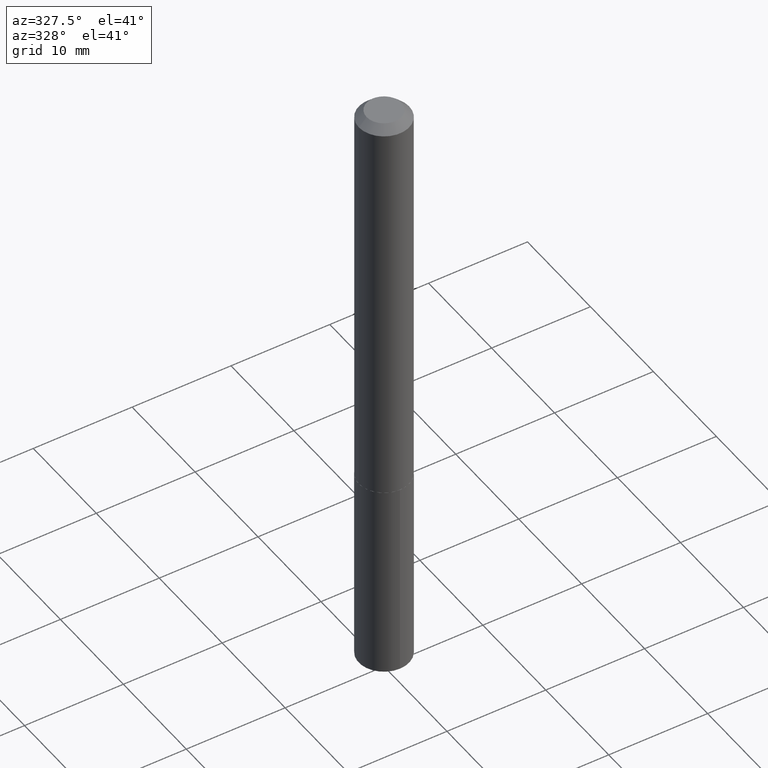
[diagram: clean part render]
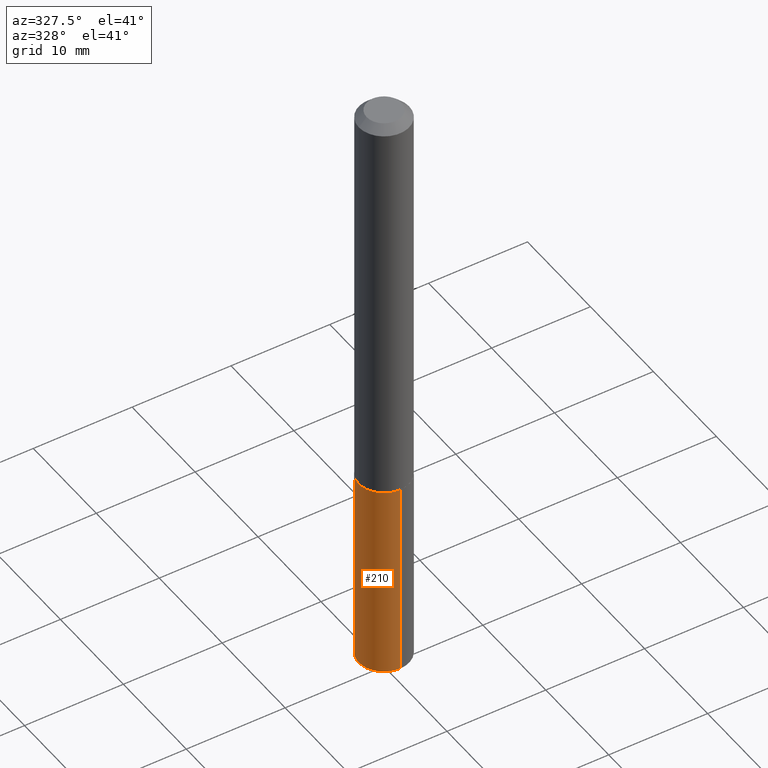
[diagram: same view with one face highlighted and labeled with its STEP entity id]
A machine part, auxiliary view. The second image highlights one B-rep face of the part: STEP entity #210.
In plain terms, the highlighted cylindrical surface (edge-blend (fillet) strip) has radius 2.5502 mm, axis along (-0, 0, 1).
Its self-contained STEP definition (entity closure, byte-faithful):
#8 = CARTESIAN_POINT ( 'NONE',  ( 7.133849067031996748E-16, 0.1003999999999943549, -1.618100000000000316 ) ) ;
#13 = VECTOR ( 'NONE', #252, 39.37007874015748143 ) ;
#29 = CARTESIAN_POINT ( 'NONE',  ( 7.133849067031994776E-16, 0.1003999999999915516, -2.413997901079916186 ) ) ;
#41 = DIRECTION ( 'NONE',  ( -2.445371237226732199E-29, 3.491621063144860985E-15, 1.000000000000000000 ) ) ;
#44 = FACE_OUTER_BOUND ( 'NONE', #145, .T. ) ;
#68 = AXIS2_PLACEMENT_3D ( 'NONE', #151, #120, #273 ) ;
#70 = LINE ( 'NONE', #94, #263 ) ;
#73 = VERTEX_POINT ( 'NONE', #29 ) ;
#75 = ORIENTED_EDGE ( 'NONE', *, *, #112, .F. ) ;
#86 = CIRCLE ( 'NONE', #91, 0.1004000000000000031 ) ;
#91 = AXIS2_PLACEMENT_3D ( 'NONE', #305, #311, #364 ) ;
#94 = CARTESIAN_POINT ( 'NONE',  ( 7.133849067031800519E-16, 0.1003999999999943549, -1.618100000000000316 ) ) ;
#111 = ORIENTED_EDGE ( 'NONE', *, *, #367, .F. ) ;
#112 = EDGE_CURVE ( 'NONE', #223, #347, #86, .T. ) ;
#120 = DIRECTION ( 'NONE',  ( -2.445371237226732199E-29, 3.491621063144860985E-15, 1.000000000000000000 ) ) ;
#124 = CARTESIAN_POINT ( 'NONE',  ( -7.010894528396616337E-16, -0.1004000000000056514, -1.618099999999999872 ) ) ;
#129 = DIRECTION ( 'NONE',  ( -6.982962677686266711E-15, -1.000000000000000000, 2.720964137115799877E-15 ) ) ;
#132 = CYLINDRICAL_SURFACE ( 'NONE', #163, 0.1004000000000000031 ) ;
#143 = ORIENTED_EDGE ( 'NONE', *, *, #174, .T. ) ;
#145 = EDGE_LOOP ( 'NONE', ( #111, #143, #235, #75 ) ) ;
#151 = CARTESIAN_POINT ( 'NONE',  ( 5.903278910358122984E-29, -8.428539829905512922E-15, -2.413997901079915742 ) ) ;
#160 = LINE ( 'NONE', #124, #13 ) ;
#162 = CARTESIAN_POINT ( 'NONE',  ( 3.957013075288169897E-29, -5.649565954382093886E-15, -1.618100000000000094 ) ) ;
#163 = AXIS2_PLACEMENT_3D ( 'NONE', #162, #41, #129 ) ;
#174 = EDGE_CURVE ( 'NONE', #73, #380, #262, .T. ) ;
#210 = ADVANCED_FACE ( 'NONE', ( #44 ), #132, .T. ) ;
#222 = DIRECTION ( 'NONE',  ( -2.445371237226731919E-29, 3.491621063144860985E-15, 1.000000000000000000 ) ) ;
#223 = VERTEX_POINT ( 'NONE', #8 ) ;
#235 = ORIENTED_EDGE ( 'NONE', *, *, #300, .T. ) ;
#252 = DIRECTION ( 'NONE',  ( -2.445371237226731919E-29, 3.491621063144860985E-15, 1.000000000000000000 ) ) ;
#262 = CIRCLE ( 'NONE', #68, 0.1004000000000000031 ) ;
#263 = VECTOR ( 'NONE', #222, 39.37007874015748143 ) ;
#273 = DIRECTION ( 'NONE',  ( -6.982962677686266711E-15, -1.000000000000000000, 2.720964137115799877E-15 ) ) ;
#300 = EDGE_CURVE ( 'NONE', #380, #347, #160, .T. ) ;
#305 = CARTESIAN_POINT ( 'NONE',  ( 3.957013075288169897E-29, -5.649565954382093886E-15, -1.618100000000000094 ) ) ;
#311 = DIRECTION ( 'NONE',  ( -2.445371237226732199E-29, 3.491621063144860985E-15, 1.000000000000000000 ) ) ;
#347 = VERTEX_POINT ( 'NONE', #372 ) ;
#364 = DIRECTION ( 'NONE',  ( -6.982962677686266711E-15, -1.000000000000000000, 2.720964137115799877E-15 ) ) ;
#367 = EDGE_CURVE ( 'NONE', #73, #223, #70, .T. ) ;
#372 = CARTESIAN_POINT ( 'NONE',  ( -7.010894528396616337E-16, -0.1004000000000056514, -1.618099999999999872 ) ) ;
#379 = CARTESIAN_POINT ( 'NONE',  ( -7.010894528396420108E-16, -0.1004000000000084269, -2.413997901079915742 ) ) ;
#380 = VERTEX_POINT ( 'NONE', #379 ) ;